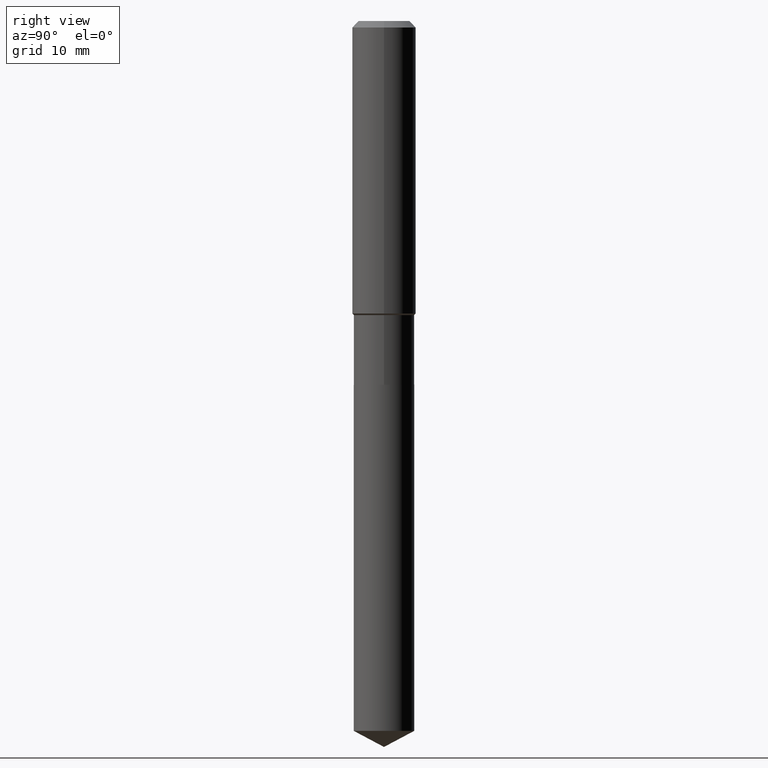
[diagram: clean part render]
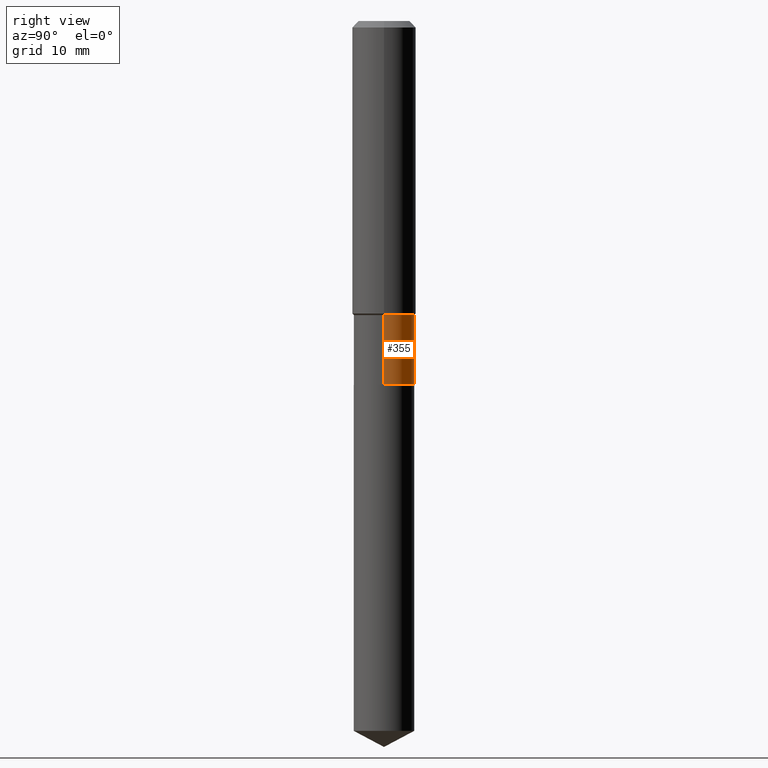
[diagram: same view with one face highlighted and labeled with its STEP entity id]
A machine part, right view. The second image highlights one B-rep face of the part: STEP entity #355.
In plain terms, the highlighted cylindrical surface (edge-blend (fillet) strip) has radius 3.7998 mm, axis along (-0, 0, 1).
Its self-contained STEP definition (entity closure, byte-faithful):
#4 = ORIENTED_EDGE ( 'NONE', *, *, #388, .T. ) ;
#21 = AXIS2_PLACEMENT_3D ( 'NONE', #147, #292, #448 ) ;
#28 = CARTESIAN_POINT ( 'NONE',  ( 0.1495999999999999830, -1.044651216581865404E-15, 7.294760456590720327E-30 ) ) ;
#29 = DIRECTION ( 'NONE',  ( -2.445468806185136877E-29, 3.491481338843145188E-15, 1.000000000000000000 ) ) ;
#59 = CARTESIAN_POINT ( 'NONE',  ( 3.548864331535870340E-29, -5.066837718929173118E-15, -1.451200000000000045 ) ) ;
#74 = CARTESIAN_POINT ( 'NONE',  ( -0.1495999999999999830, -4.603702280245315850E-15, -1.451200000000000045 ) ) ;
#88 = VECTOR ( 'NONE', #29, 39.37007874015748143 ) ;
#99 = LINE ( 'NONE', #28, #134 ) ;
#106 = CYLINDRICAL_SURFACE ( 'NONE', #21, 0.1495999999999999830 ) ;
#113 = EDGE_CURVE ( 'NONE', #192, #187, #99, .T. ) ;
#131 = CARTESIAN_POINT ( 'NONE',  ( 0.1496000000000000107, -7.311161923537544091E-15, -1.794800000000000173 ) ) ;
#134 = VECTOR ( 'NONE', #248, 39.37007874015748143 ) ;
#147 = CARTESIAN_POINT ( 'NONE',  ( 0.000000000000000000, 0.000000000000000000, 0.000000000000000000 ) ) ;
#157 = CIRCLE ( 'NONE', #386, 0.1496000000000000107 ) ;
#187 = VERTEX_POINT ( 'NONE', #281 ) ;
#192 = VERTEX_POINT ( 'NONE', #131 ) ;
#207 = DIRECTION ( 'NONE',  ( -2.445468806185136597E-29, 3.491481338843145583E-15, 1.000000000000000000 ) ) ;
#248 = DIRECTION ( 'NONE',  ( -2.445468806185136877E-29, 3.491481338843145188E-15, 1.000000000000000000 ) ) ;
#266 = CIRCLE ( 'NONE', #422, 0.1495999999999999830 ) ;
#281 = CARTESIAN_POINT ( 'NONE',  ( 0.1495999999999999830, -6.111488935511037930E-15, -1.451200000000000045 ) ) ;
#282 = DIRECTION ( 'NONE',  ( -2.445468806185136597E-29, 3.491481338843145583E-15, 1.000000000000000000 ) ) ;
#289 = EDGE_CURVE ( 'NONE', #187, #360, #266, .T. ) ;
#292 = DIRECTION ( 'NONE',  ( -2.445468806185136597E-29, 3.491481338843145583E-15, 1.000000000000000000 ) ) ;
#304 = EDGE_CURVE ( 'NONE', #447, #360, #327, .T. ) ;
#325 = DIRECTION ( 'NONE',  ( 1.000000000000000000, -6.982962677686268288E-15, 0.000000000000000000 ) ) ;
#327 = LINE ( 'NONE', #486, #88 ) ;
#328 = ORIENTED_EDGE ( 'NONE', *, *, #289, .F. ) ;
#341 = ORIENTED_EDGE ( 'NONE', *, *, #113, .F. ) ;
#355 = ADVANCED_FACE ( 'NONE', ( #362 ), #106, .T. ) ;
#356 = DIRECTION ( 'NONE',  ( 1.000000000000000000, -6.982962677686262766E-15, 0.000000000000000000 ) ) ;
#360 = VERTEX_POINT ( 'NONE', #74 ) ;
#362 = FACE_OUTER_BOUND ( 'NONE', #488, .T. ) ;
#378 = CARTESIAN_POINT ( 'NONE',  ( -0.1496000000000000107, -4.603702280245315061E-15, -1.794800000000000173 ) ) ;
#386 = AXIS2_PLACEMENT_3D ( 'NONE', #444, #282, #325 ) ;
#388 = EDGE_CURVE ( 'NONE', #192, #447, #157, .T. ) ;
#422 = AXIS2_PLACEMENT_3D ( 'NONE', #59, #207, #356 ) ;
#444 = CARTESIAN_POINT ( 'NONE',  ( 4.389127413341083429E-29, -6.266510706955677702E-15, -1.794800000000000173 ) ) ;
#447 = VERTEX_POINT ( 'NONE', #378 ) ;
#448 = DIRECTION ( 'NONE',  ( 1.000000000000000000, -6.982962677686266711E-15, 4.876176775795936353E-29 ) ) ;
#453 = ORIENTED_EDGE ( 'NONE', *, *, #304, .T. ) ;
#486 = CARTESIAN_POINT ( 'NONE',  ( -0.1495999999999999830, 1.062971932697109757E-15, -7.358726895021338760E-30 ) ) ;
#488 = EDGE_LOOP ( 'NONE', ( #4, #453, #328, #341 ) ) ;